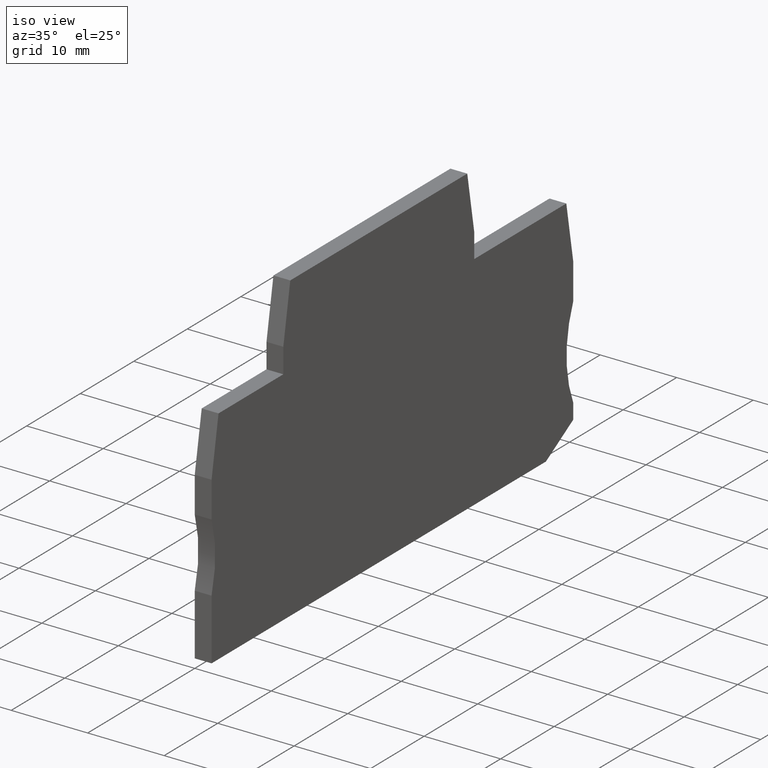
[diagram: clean part render]
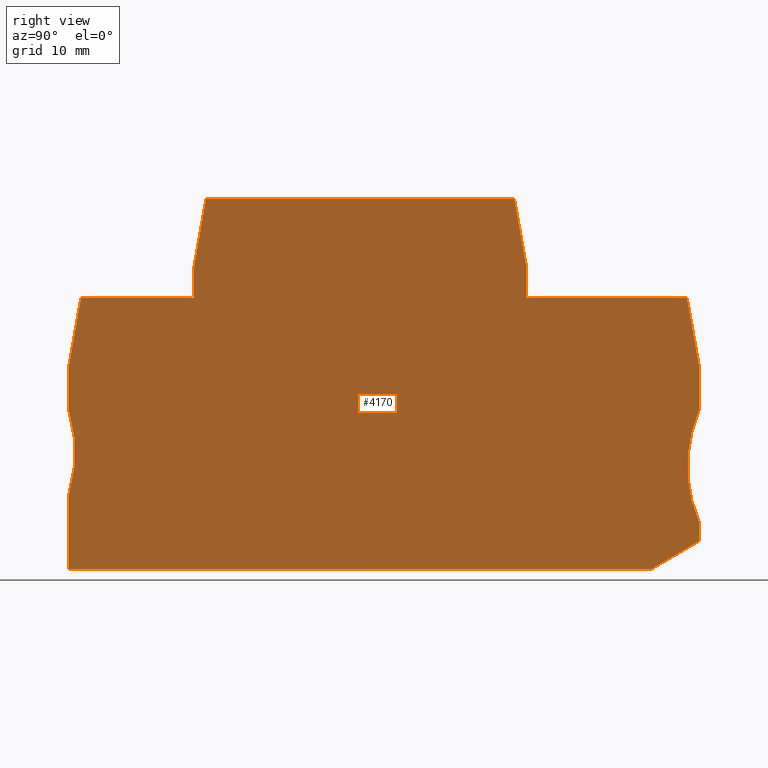
[diagram: tour spotlight — one face highlighted and labeled with its STEP entity id]
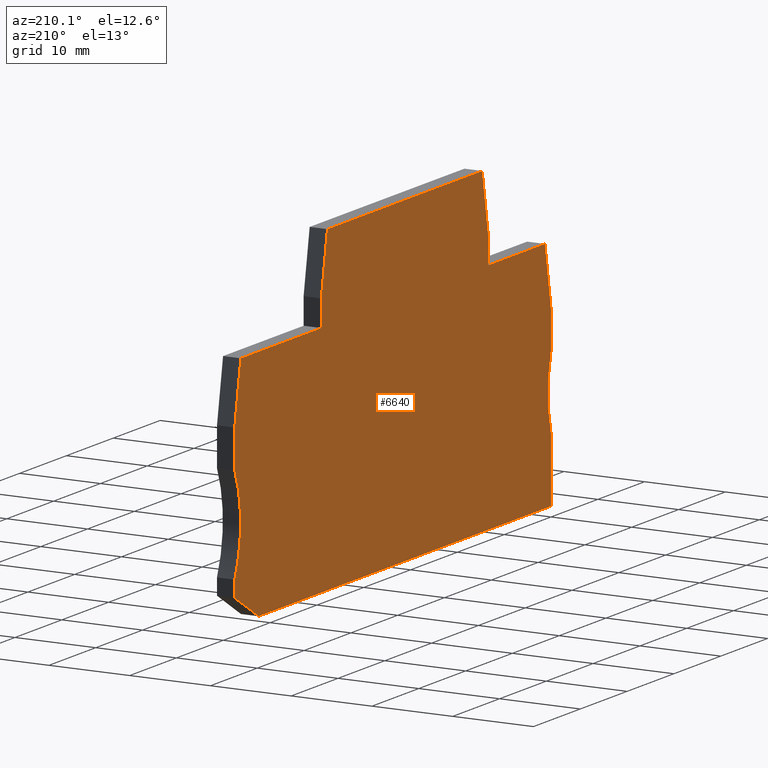
[diagram: tour spotlight — one face highlighted and labeled with its STEP entity id]
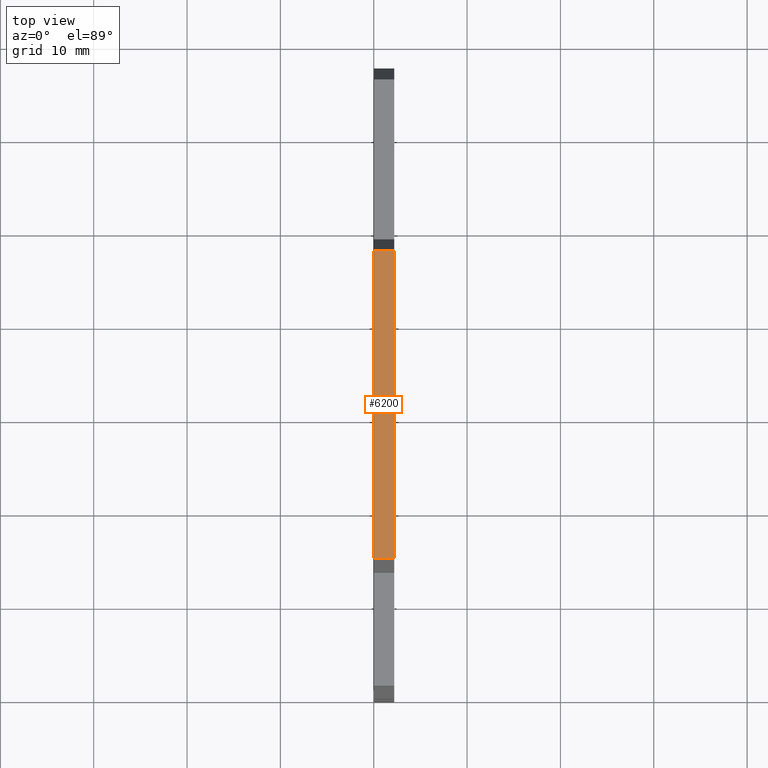
[diagram: tour spotlight — one face highlighted and labeled with its STEP entity id]
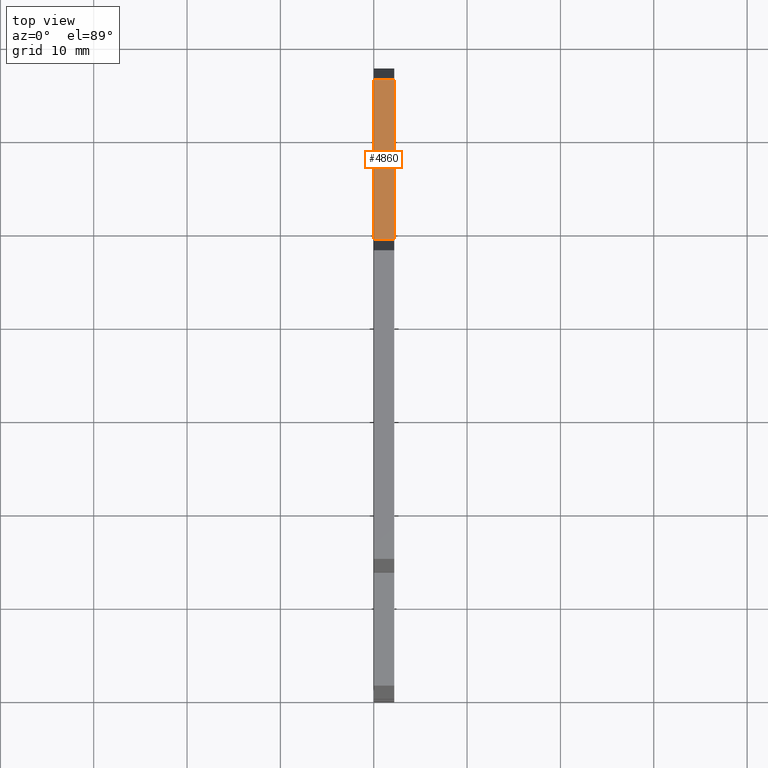
[diagram: tour spotlight — one face highlighted and labeled with its STEP entity id]
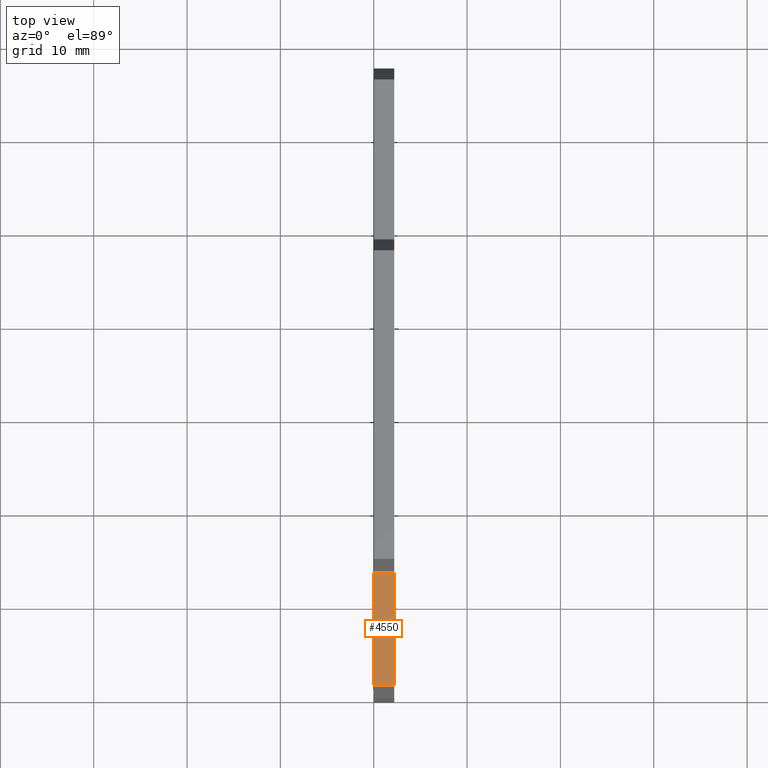
[diagram: tour spotlight — one face highlighted and labeled with its STEP entity id]
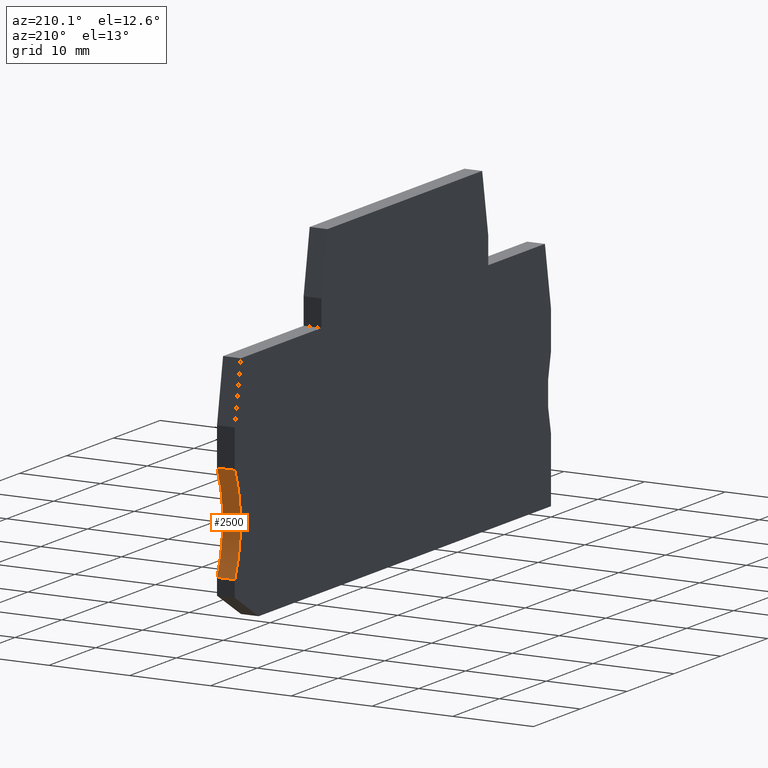
[diagram: tour spotlight — one face highlighted and labeled with its STEP entity id]
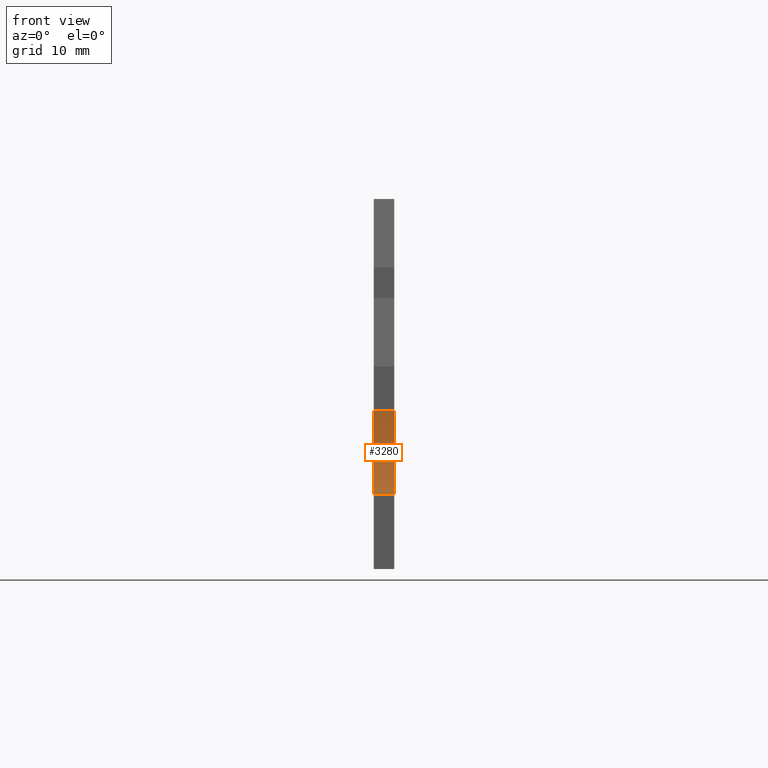
[diagram: tour spotlight — one face highlighted and labeled with its STEP entity id]
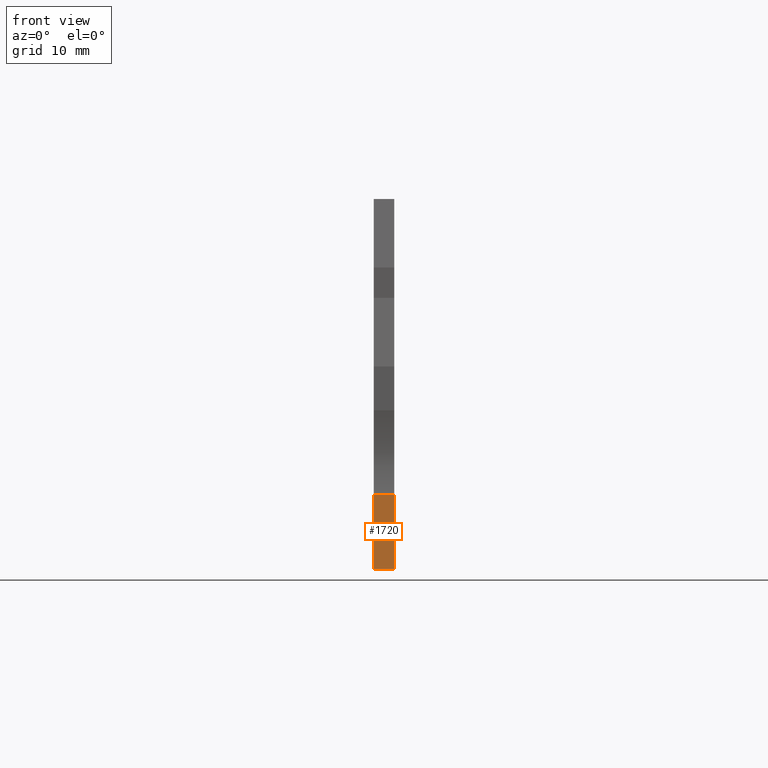
[diagram: tour spotlight — one face highlighted and labeled with its STEP entity id]
A machine part: a face-by-face anatomy tour. The part has 19 B-rep faces; the first image is the clean iso view, then the 8 largest visible faces are spotlighted one at a time (largest first), each with its STEP entity span.

Face 1 — right view, entity #4170. In plain terms, the highlighted planar face has unit normal (-1, -0, 0).
Definition (entity closure, byte-faithful):
#200=CARTESIAN_POINT('',(96.9073958539173,-9.15000000000308,55.87));
#210=VERTEX_POINT('',#200);
#240=CARTESIAN_POINT('',(96.9073958539173,-11.94298,55.87));
#250=DIRECTION('',(-8.74514136349906E-15,1.,0.));
#260=VECTOR('',#250,1.);
#270=LINE('',#240,#260);
#280=CARTESIAN_POINT('',(96.9073958539173,-5.90000000010878,55.87));
#290=VERTEX_POINT('',#280);
#300=EDGE_CURVE('',#210,#290,#270,.T.);
#590=CARTESIAN_POINT('',(47.8573958538972,-38.2000000000016,55.87));
#600=VERTEX_POINT('',#590);
#630=CARTESIAN_POINT('',(104.930098,-38.2000000000016,55.87));
#640=DIRECTION('',(1.,0.,0.));
#650=VECTOR('',#640,1.);
#660=LINE('',#630,#650);
#670=CARTESIAN_POINT('',(110.302453373372,-38.2000000000016,55.87));
#680=VERTEX_POINT('',#670);
#690=EDGE_CURVE('',#600,#680,#660,.T.);
#1140=CARTESIAN_POINT('',(115.407395853897,-21.2000000000027,55.87));
#1150=VERTEX_POINT('',#1140);
#1180=CARTESIAN_POINT('',(115.407395853897,-11.94298,55.87));
#1190=DIRECTION('',(0.,1.,0.));
#1200=VECTOR('',#1190,1.);
#1210=LINE('',#1180,#1200);
#1220=CARTESIAN_POINT('',(115.407395853897,-16.5000017509225,55.87));
#1230=VERTEX_POINT('',#1220);
#1240=EDGE_CURVE('',#1150,#1230,#1210,.T.);
#1590=CARTESIAN_POINT('',(47.8573958538972,-30.2000000000048,55.87));
#1600=VERTEX_POINT('',#1590);
#1630=CARTESIAN_POINT('',(47.8573958538972,-11.94298,55.87));
#1640=DIRECTION('',(-4.65275954243089E-17,-1.,0.));
#1650=VECTOR('',#1640,1.);
#1660=LINE('',#1630,#1650);
#1670=EDGE_CURVE('',#1600,#600,#1660,.T.);
#1990=CARTESIAN_POINT('',(115.407395853897,-35.2001345347364,55.87));
#2000=VERTEX_POINT('',#1990);
#2030=CARTESIAN_POINT('',(115.407395853897,-11.94298,55.87));
#2040=DIRECTION('',(0.,1.,0.));
#2050=VECTOR('',#2040,1.);
#2060=LINE('',#2030,#2050);
#2070=CARTESIAN_POINT('',(115.407395853897,-33.2000000000028,55.87));
#2080=VERTEX_POINT('',#2070);
#2090=EDGE_CURVE('',#2000,#2080,#2060,.T.);
#2400=CARTESIAN_POINT('',(129.155122938765,-27.2000000000027,55.87));
#2410=DIRECTION('',(0.,0.,1.));
#2420=DIRECTION('',(1.,0.,0.));
#2430=AXIS2_PLACEMENT_3D('',#2400,#2410,#2420);
#2440=CIRCLE('',#2430,15.);
#2450=EDGE_CURVE('',#1150,#2080,#2440,.T.);
#2690=CARTESIAN_POINT('',(47.8573958538972,-16.4999982489833,55.87));
#2700=VERTEX_POINT('',#2690);
#2730=CARTESIAN_POINT('',(47.8573958538972,-11.94298,55.87));
#2740=DIRECTION('',(0.,-1.,0.));
#2750=VECTOR('',#2740,1.);
#2760=LINE('',#2730,#2750);
#2770=CARTESIAN_POINT('',(47.8573958538972,-21.2000000000006,55.87));
#2780=VERTEX_POINT('',#2770);
#2790=EDGE_CURVE('',#2700,#2780,#2760,.T.);
#3180=CARTESIAN_POINT('',(33.5483078326437,-25.7000000000027,55.87));
#3190=DIRECTION('',(0.,0.,-1.));
#3200=DIRECTION('',(-1.,0.,0.));
#3210=AXIS2_PLACEMENT_3D('',#3180,#3190,#3200);
#3220=CIRCLE('',#3210,15.);
#3230=EDGE_CURVE('',#2780,#1600,#3220,.T.);
#3360=CARTESIAN_POINT('',(50.6620291852084,-9.97054786192231,55.87));
#3370=DIRECTION('',(0.,0.,-1.));
#3380=DIRECTION('',(-1.,0.,0.));
#3390=AXIS2_PLACEMENT_3D('',#3360,#3370,#3380);
#3400=PLANE('',#3390);
#3410=CARTESIAN_POINT('',(48.6609211227738,-11.94298,55.87));
#3420=DIRECTION('',(0.173648177666926,0.984807753012209,0.));
#3430=VECTOR('',#3420,1.);
#3440=LINE('',#3410,#3430);
#3450=CARTESIAN_POINT('',(49.1533988533523,-9.15000000000308,55.87));
#3460=VERTEX_POINT('',#3450);
#3470=EDGE_CURVE('',#2700,#3460,#3440,.T.);
#3480=ORIENTED_EDGE('',*,*,#3470,.F.);
#3490=CARTESIAN_POINT('',(104.930098,-9.15000000003588,55.87));
#3500=DIRECTION('',(1.,-5.88205564955502E-13,0.));
#3510=VECTOR('',#3500,1.);
#3520=LINE('',#3490,#3510);
#3530=CARTESIAN_POINT('',(61.2573958538972,-9.15000000001019,55.87));
#3540=VERTEX_POINT('',#3530);
#3550=EDGE_CURVE('',#3460,#3540,#3520,.T.);
#3560=ORIENTED_EDGE('',*,*,#3550,.F.);
#3570=CARTESIAN_POINT('',(61.2573958538972,-11.94298,55.87));
#3580=DIRECTION('',(0.,-1.,0.));
#3590=VECTOR('',#3580,1.);
#3600=LINE('',#3570,#3590);
#3610=CARTESIAN_POINT('',(61.2573958538972,-5.8999999999975,55.87));
#3620=VERTEX_POINT('',#3610);
#3630=EDGE_CURVE('',#3620,#3540,#3600,.T.);
#3640=ORIENTED_EDGE('',*,*,#3630,.T.);
#3650=CARTESIAN_POINT('',(60.1918554360151,-11.94298,55.87));
#3660=DIRECTION('',(-0.17364817766693,-0.984807753012208,0.));
#3670=VECTOR('',#3660,1.);
#3680=LINE('',#3650,#3670);
#3690=CARTESIAN_POINT('',(62.5533991621023,1.44999999999058,55.87));
#3700=VERTEX_POINT('',#3690);
#3710=EDGE_CURVE('',#3700,#3620,#3680,.T.);
#3720=ORIENTED_EDGE('',*,*,#3710,.T.);
#3730=CARTESIAN_POINT('',(104.930098,1.44999999999058,55.87));
#3740=DIRECTION('',(-1.,0.,0.));
#3750=VECTOR('',#3740,1.);
#3760=LINE('',#3730,#3750);
#3770=CARTESIAN_POINT('',(95.6113925456925,1.44999999999058,55.87));
#3780=VERTEX_POINT('',#3770);
#3790=EDGE_CURVE('',#3780,#3700,#3760,.T.);
#3800=ORIENTED_EDGE('',*,*,#3790,.T.);
#3810=CARTESIAN_POINT('',(97.9729362717797,-11.94298,55.87));
#3820=DIRECTION('',(-0.173648177666931,0.984807753012208,0.));
#3830=VECTOR('',#3820,1.);
#3840=LINE('',#3810,#3830);
#3850=EDGE_CURVE('',#290,#3780,#3840,.T.);
#3860=ORIENTED_EDGE('',*,*,#3850,.T.);
#3870=ORIENTED_EDGE('',*,*,#300,.T.);
#3880=CARTESIAN_POINT('',(104.930098,-9.15000000000308,55.87));
#3890=DIRECTION('',(-1.,0.,0.));
#3900=VECTOR('',#3890,1.);
#3910=LINE('',#3880,#3900);
#3920=CARTESIAN_POINT('',(114.111392236956,-9.15000000000308,55.87));
#3930=VERTEX_POINT('',#3920);
#3940=EDGE_CURVE('',#3930,#210,#3910,.T.);
#3950=ORIENTED_EDGE('',*,*,#3940,.T.);
#3960=CARTESIAN_POINT('',(114.603869967534,-11.94298,55.87));
#3970=DIRECTION('',(-0.17364817766693,0.984807753012208,0.));
#3980=VECTOR('',#3970,1.);
#3990=LINE('',#3960,#3980);
#4000=EDGE_CURVE('',#1230,#3930,#3990,.T.);
#4010=ORIENTED_EDGE('',*,*,#4000,.T.);
#4020=ORIENTED_EDGE('',*,*,#1240,.T.);
#4030=ORIENTED_EDGE('',*,*,#2450,.F.);
#4040=ORIENTED_EDGE('',*,*,#2090,.T.);
#4050=CARTESIAN_POINT('',(104.930098,-41.3570078239273,55.87));
#4060=DIRECTION('',(0.862158641431198,0.506638408537598,0.));
#4070=VECTOR('',#4060,1.);
#4080=LINE('',#4050,#4070);
#4090=EDGE_CURVE('',#680,#2000,#4080,.T.);
#4100=ORIENTED_EDGE('',*,*,#4090,.T.);
#4110=ORIENTED_EDGE('',*,*,#690,.T.);
#4120=ORIENTED_EDGE('',*,*,#1670,.T.);
#4130=ORIENTED_EDGE('',*,*,#3230,.T.);
#4140=ORIENTED_EDGE('',*,*,#2790,.T.);
#4150=EDGE_LOOP('',(#4140,#4130,#4120,#4110,#4100,#4040,#4030,#4020,
#4010,#3950,#3870,#3860,#3800,#3720,#3640,#3560,#3480));
#4160=FACE_OUTER_BOUND('',#4150,.T.);
#4170=ADVANCED_FACE('',(#4160),#3400,.F.);

Face 2 — auxiliary view, entity #6640. In plain terms, the highlighted planar face has unit normal (-1, -0, 0).
Definition (entity closure, byte-faithful):
#60=CARTESIAN_POINT('',(96.9073958539173,-11.94298,53.67));
#70=DIRECTION('',(8.74514136349906E-15,-1.,0.));
#80=VECTOR('',#70,1.);
#90=LINE('',#60,#80);
#100=CARTESIAN_POINT('',(96.9073958539173,-5.90000000010878,53.67));
#110=VERTEX_POINT('',#100);
#120=CARTESIAN_POINT('',(96.9073958539173,-9.15000000000308,53.67));
#130=VERTEX_POINT('',#120);
#140=EDGE_CURVE('',#110,#130,#90,.T.);
#570=CARTESIAN_POINT('',(47.8573958538972,-38.2000000000016,53.67));
#580=VERTEX_POINT('',#570);
#750=CARTESIAN_POINT('',(110.302453373372,-38.2000000000016,53.67));
#760=VERTEX_POINT('',#750);
#790=CARTESIAN_POINT('',(104.930098,-38.2000000000016,53.67));
#800=DIRECTION('',(-1.,0.,0.));
#810=VECTOR('',#800,1.);
#820=LINE('',#790,#810);
#830=EDGE_CURVE('',#760,#580,#820,.T.);
#1000=CARTESIAN_POINT('',(115.407395853897,-11.94298,53.67));
#1010=DIRECTION('',(0.,-1.,0.));
#1020=VECTOR('',#1010,1.);
#1030=LINE('',#1000,#1020);
#1040=CARTESIAN_POINT('',(115.407395853897,-16.5000017509225,53.67));
#1050=VERTEX_POINT('',#1040);
#1060=CARTESIAN_POINT('',(115.407395853897,-21.2000000000027,53.67));
#1070=VERTEX_POINT('',#1060);
#1080=EDGE_CURVE('',#1050,#1070,#1030,.T.);
#1470=CARTESIAN_POINT('',(47.8573958538972,-11.94298,53.67));
#1480=DIRECTION('',(4.65275954243089E-17,1.,0.));
#1490=VECTOR('',#1480,1.);
#1500=LINE('',#1470,#1490);
#1510=CARTESIAN_POINT('',(47.8573958538972,-30.2000000000048,53.67));
#1520=VERTEX_POINT('',#1510);
#1530=EDGE_CURVE('',#580,#1520,#1500,.T.);
#1850=CARTESIAN_POINT('',(115.407395853897,-11.94298,53.67));
#1860=DIRECTION('',(0.,-1.,0.));
#1870=VECTOR('',#1860,1.);
#1880=LINE('',#1850,#1870);
#1890=CARTESIAN_POINT('',(115.407395853897,-33.2000000000028,53.67));
#1900=VERTEX_POINT('',#1890);
#1910=CARTESIAN_POINT('',(115.407395853897,-35.2001345347364,53.67));
#1920=VERTEX_POINT('',#1910);
#1930=EDGE_CURVE('',#1900,#1920,#1880,.T.);
#2320=CARTESIAN_POINT('',(129.155122938765,-27.2000000000027,53.67));
#2330=DIRECTION('',(0.,0.,1.));
#2340=DIRECTION('',(1.,0.,0.));
#2350=AXIS2_PLACEMENT_3D('',#2320,#2330,#2340);
#2360=CIRCLE('',#2350,15.);
#2370=EDGE_CURVE('',#1070,#1900,#2360,.T.);
#2670=CARTESIAN_POINT('',(47.8573958538972,-16.4999982489833,53.67));
#2680=VERTEX_POINT('',#2670);
#2850=CARTESIAN_POINT('',(47.8573958538972,-21.2000000000006,53.67));
#2860=VERTEX_POINT('',#2850);
#2890=CARTESIAN_POINT('',(47.8573958538972,-11.94298,53.67));
#2900=DIRECTION('',(0.,1.,0.));
#2910=VECTOR('',#2900,1.);
#2920=LINE('',#2890,#2910);
#2930=EDGE_CURVE('',#2860,#2680,#2920,.T.);
#3100=CARTESIAN_POINT('',(33.5483078326437,-25.7000000000027,53.67));
#3110=DIRECTION('',(0.,0.,-1.));
#3120=DIRECTION('',(-1.,0.,0.));
#3130=AXIS2_PLACEMENT_3D('',#3100,#3110,#3120);
#3140=CIRCLE('',#3130,15.);
#3150=EDGE_CURVE('',#2860,#1520,#3140,.T.);
#4300=CARTESIAN_POINT('',(104.930098,-9.15000000003588,53.67));
#4310=DIRECTION('',(1.,-5.88205564955502E-13,0.));
#4320=VECTOR('',#4310,1.);
#4330=LINE('',#4300,#4320);
#4340=CARTESIAN_POINT('',(49.1533988533523,-9.15000000000308,53.67));
#4350=VERTEX_POINT('',#4340);
#4360=CARTESIAN_POINT('',(61.2573958538972,-9.15000000001019,53.67));
#4370=VERTEX_POINT('',#4360);
#4380=EDGE_CURVE('',#4350,#4370,#4330,.T.);
#4690=CARTESIAN_POINT('',(104.930098,-9.15000000000308,53.67));
#4700=DIRECTION('',(1.,0.,0.));
#4710=VECTOR('',#4700,1.);
#4720=LINE('',#4690,#4710);
#4730=CARTESIAN_POINT('',(114.111392236956,-9.15000000000308,53.67));
#4740=VERTEX_POINT('',#4730);
#4750=EDGE_CURVE('',#130,#4740,#4720,.T.);
#4990=CARTESIAN_POINT('',(97.9729362717797,-11.94298,53.67));
#5000=DIRECTION('',(0.173648177666931,-0.984807753012208,0.));
#5010=VECTOR('',#5000,1.);
#5020=LINE('',#4990,#5010);
#5030=CARTESIAN_POINT('',(95.6113925456925,1.44999999999058,53.67));
#5040=VERTEX_POINT('',#5030);
#5050=EDGE_CURVE('',#5040,#110,#5020,.T.);
#5300=CARTESIAN_POINT('',(48.6609211227738,-11.94298,53.67));
#5310=DIRECTION('',(0.173648177666926,0.984807753012209,0.));
#5320=VECTOR('',#5310,1.);
#5330=LINE('',#5300,#5320);
#5340=EDGE_CURVE('',#2680,#4350,#5330,.T.);
#5540=CARTESIAN_POINT('',(114.603869967534,-11.94298,53.67));
#5550=DIRECTION('',(0.17364817766693,-0.984807753012208,0.));
#5560=VECTOR('',#5550,1.);
#5570=LINE('',#5540,#5560);
#5580=EDGE_CURVE('',#4740,#1050,#5570,.T.);
#5800=CARTESIAN_POINT('',(104.930098,-41.3570078239273,53.67));
#5810=DIRECTION('',(-0.862158641431198,-0.506638408537598,0.));
#5820=VECTOR('',#5810,1.);
#5830=LINE('',#5800,#5820);
#5840=EDGE_CURVE('',#1920,#760,#5830,.T.);
#6060=CARTESIAN_POINT('',(62.5533991621023,1.44999999999059,53.67));
#6070=VERTEX_POINT('',#6060);
#6100=CARTESIAN_POINT('',(104.930098,1.44999999999058,53.67));
#6110=DIRECTION('',(1.,0.,0.));
#6120=VECTOR('',#6110,1.);
#6130=LINE('',#6100,#6120);
#6140=EDGE_CURVE('',#6070,#5040,#6130,.T.);
#6280=CARTESIAN_POINT('',(56.1471459409733,-20.796013,53.67));
#6290=DIRECTION('',(0.,0.,-1.));
#6300=DIRECTION('',(-1.,0.,0.));
#6310=AXIS2_PLACEMENT_3D('',#6280,#6290,#6300);
#6320=PLANE('',#6310);
#6330=ORIENTED_EDGE('',*,*,#5840,.T.);
#6340=ORIENTED_EDGE('',*,*,#1930,.T.);
#6350=ORIENTED_EDGE('',*,*,#2370,.T.);
#6360=ORIENTED_EDGE('',*,*,#1080,.T.);
#6370=ORIENTED_EDGE('',*,*,#5580,.T.);
#6380=ORIENTED_EDGE('',*,*,#4750,.T.);
#6390=ORIENTED_EDGE('',*,*,#140,.T.);
#6400=ORIENTED_EDGE('',*,*,#5050,.T.);
#6410=ORIENTED_EDGE('',*,*,#6140,.T.);
#6420=CARTESIAN_POINT('',(60.1918554360151,-11.94298,53.67));
#6430=DIRECTION('',(0.17364817766693,0.984807753012208,0.));
#6440=VECTOR('',#6430,1.);
#6450=LINE('',#6420,#6440);
#6460=CARTESIAN_POINT('',(61.2573958538972,-5.8999999999975,53.67));
#6470=VERTEX_POINT('',#6460);
#6480=EDGE_CURVE('',#6470,#6070,#6450,.T.);
#6490=ORIENTED_EDGE('',*,*,#6480,.T.);
#6500=CARTESIAN_POINT('',(61.2573958538972,-11.94298,53.67));
#6510=DIRECTION('',(0.,1.,0.));
#6520=VECTOR('',#6510,1.);
#6530=LINE('',#6500,#6520);
#6540=EDGE_CURVE('',#4370,#6470,#6530,.T.);
#6550=ORIENTED_EDGE('',*,*,#6540,.T.);
#6560=ORIENTED_EDGE('',*,*,#4380,.T.);
#6570=ORIENTED_EDGE('',*,*,#5340,.T.);
#6580=ORIENTED_EDGE('',*,*,#2930,.T.);
#6590=ORIENTED_EDGE('',*,*,#3150,.F.);
#6600=ORIENTED_EDGE('',*,*,#1530,.T.);
#6610=ORIENTED_EDGE('',*,*,#830,.T.);
#6620=EDGE_LOOP('',(#6610,#6600,#6590,#6580,#6570,#6560,#6550,#6490,
#6410,#6400,#6390,#6380,#6370,#6360,#6350,#6340,#6330));
#6630=FACE_OUTER_BOUND('',#6620,.T.);
#6640=ADVANCED_FACE('',(#6630),#6320,.T.);

Face 3 — top view, entity #6200. In plain terms, the highlighted planar face has unit normal (0, 0, 1).
Definition (entity closure, byte-faithful):
#3690=CARTESIAN_POINT('',(62.5533991621023,1.44999999999058,55.87));
#3700=VERTEX_POINT('',#3690);
#3730=CARTESIAN_POINT('',(104.930098,1.44999999999058,55.87));
#3740=DIRECTION('',(-1.,0.,0.));
#3750=VECTOR('',#3740,1.);
#3760=LINE('',#3730,#3750);
#3770=CARTESIAN_POINT('',(95.6113925456925,1.44999999999058,55.87));
#3780=VERTEX_POINT('',#3770);
#3790=EDGE_CURVE('',#3780,#3700,#3760,.T.);
#5030=CARTESIAN_POINT('',(95.6113925456925,1.44999999999058,53.67));
#5040=VERTEX_POINT('',#5030);
#5090=CARTESIAN_POINT('',(95.6113925456925,1.44999999999058,53.67));
#5100=DIRECTION('',(0.,0.,1.));
#5110=VECTOR('',#5100,1.);
#5120=LINE('',#5090,#5110);
#5130=EDGE_CURVE('',#5040,#3780,#5120,.T.);
#5970=CARTESIAN_POINT('',(79.2073958539156,1.44999999999058,53.67));
#5980=DIRECTION('',(-0.,1.,0.));
#5990=DIRECTION('',(1.,0.,0.));
#6000=AXIS2_PLACEMENT_3D('',#5970,#5980,#5990);
#6010=PLANE('',#6000);
#6020=CARTESIAN_POINT('',(62.5533991621023,1.44999999999058,53.67));
#6030=DIRECTION('',(0.,0.,1.));
#6040=VECTOR('',#6030,1.);
#6050=LINE('',#6020,#6040);
#6060=CARTESIAN_POINT('',(62.5533991621023,1.44999999999059,53.67));
#6070=VERTEX_POINT('',#6060);
#6080=EDGE_CURVE('',#6070,#3700,#6050,.T.);
#6090=ORIENTED_EDGE('',*,*,#6080,.T.);
#6100=CARTESIAN_POINT('',(104.930098,1.44999999999058,53.67));
#6110=DIRECTION('',(1.,0.,0.));
#6120=VECTOR('',#6110,1.);
#6130=LINE('',#6100,#6120);
#6140=EDGE_CURVE('',#6070,#5040,#6130,.T.);
#6150=ORIENTED_EDGE('',*,*,#6140,.F.);
#6160=ORIENTED_EDGE('',*,*,#5130,.F.);
#6170=ORIENTED_EDGE('',*,*,#3790,.F.);
#6180=EDGE_LOOP('',(#6170,#6160,#6150,#6090));
#6190=FACE_OUTER_BOUND('',#6180,.T.);
#6200=ADVANCED_FACE('',(#6190),#6010,.T.);

Face 4 — top view, entity #4860. In plain terms, the highlighted planar face has unit normal (0, 0, 1).
Definition (entity closure, byte-faithful):
#120=CARTESIAN_POINT('',(96.9073958539173,-9.15000000000308,53.67));
#130=VERTEX_POINT('',#120);
#160=CARTESIAN_POINT('',(96.9073958539173,-9.15000000000308,53.67));
#170=DIRECTION('',(0.,0.,-1.));
#180=VECTOR('',#170,1.);
#190=LINE('',#160,#180);
#200=CARTESIAN_POINT('',(96.9073958539173,-9.15000000000308,55.87));
#210=VERTEX_POINT('',#200);
#220=EDGE_CURVE('',#210,#130,#190,.T.);
#3880=CARTESIAN_POINT('',(104.930098,-9.15000000000308,55.87));
#3890=DIRECTION('',(-1.,0.,0.));
#3900=VECTOR('',#3890,1.);
#3910=LINE('',#3880,#3900);
#3920=CARTESIAN_POINT('',(114.111392236956,-9.15000000000308,55.87));
#3930=VERTEX_POINT('',#3920);
#3940=EDGE_CURVE('',#3930,#210,#3910,.T.);
#4630=CARTESIAN_POINT('',(100.607395853917,-9.15000000000308,53.67));
#4640=DIRECTION('',(-0.,1.,0.));
#4650=DIRECTION('',(1.,0.,0.));
#4660=AXIS2_PLACEMENT_3D('',#4630,#4640,#4650);
#4670=PLANE('',#4660);
#4680=ORIENTED_EDGE('',*,*,#220,.F.);
#4690=CARTESIAN_POINT('',(104.930098,-9.15000000000308,53.67));
#4700=DIRECTION('',(1.,0.,0.));
#4710=VECTOR('',#4700,1.);
#4720=LINE('',#4690,#4710);
#4730=CARTESIAN_POINT('',(114.111392236956,-9.15000000000308,53.67));
#4740=VERTEX_POINT('',#4730);
#4750=EDGE_CURVE('',#130,#4740,#4720,.T.);
#4760=ORIENTED_EDGE('',*,*,#4750,.F.);
#4770=CARTESIAN_POINT('',(114.111392236956,-9.15000000000308,53.67));
#4780=DIRECTION('',(0.,0.,1.));
#4790=VECTOR('',#4780,1.);
#4800=LINE('',#4770,#4790);
#4810=EDGE_CURVE('',#4740,#3930,#4800,.T.);
#4820=ORIENTED_EDGE('',*,*,#4810,.F.);
#4830=ORIENTED_EDGE('',*,*,#3940,.F.);
#4840=EDGE_LOOP('',(#4830,#4820,#4760,#4680));
#4850=FACE_OUTER_BOUND('',#4840,.T.);
#4860=ADVANCED_FACE('',(#4850),#4670,.T.);

Face 5 — top view, entity #4550. In plain terms, the highlighted planar face has unit normal (0, 0, 1).
Definition (entity closure, byte-faithful):
#3450=CARTESIAN_POINT('',(49.1533988533523,-9.15000000000308,55.87));
#3460=VERTEX_POINT('',#3450);
#3490=CARTESIAN_POINT('',(104.930098,-9.15000000003588,55.87));
#3500=DIRECTION('',(1.,-5.88205564955502E-13,0.));
#3510=VECTOR('',#3500,1.);
#3520=LINE('',#3490,#3510);
#3530=CARTESIAN_POINT('',(61.2573958538972,-9.15000000001019,55.87));
#3540=VERTEX_POINT('',#3530);
#3550=EDGE_CURVE('',#3460,#3540,#3520,.T.);
#4250=CARTESIAN_POINT('',(49.1533985851014,-9.15000000000308,53.67));
#4260=DIRECTION('',(5.88205564955502E-13,1.,0.));
#4270=DIRECTION('',(1.,-5.88205564955502E-13,0.));
#4280=AXIS2_PLACEMENT_3D('',#4250,#4260,#4270);
#4290=PLANE('',#4280);
#4300=CARTESIAN_POINT('',(104.930098,-9.15000000003588,53.67));
#4310=DIRECTION('',(1.,-5.88205564955502E-13,0.));
#4320=VECTOR('',#4310,1.);
#4330=LINE('',#4300,#4320);
#4340=CARTESIAN_POINT('',(49.1533988533523,-9.15000000000308,53.67));
#4350=VERTEX_POINT('',#4340);
#4360=CARTESIAN_POINT('',(61.2573958538972,-9.15000000001019,53.67));
#4370=VERTEX_POINT('',#4360);
#4380=EDGE_CURVE('',#4350,#4370,#4330,.T.);
#4390=ORIENTED_EDGE('',*,*,#4380,.F.);
#4400=CARTESIAN_POINT('',(61.2573958538972,-9.15000000001019,53.67));
#4410=DIRECTION('',(0.,0.,-1.));
#4420=VECTOR('',#4410,1.);
#4430=LINE('',#4400,#4420);
#4440=EDGE_CURVE('',#3540,#4370,#4430,.T.);
#4450=ORIENTED_EDGE('',*,*,#4440,.T.);
#4460=ORIENTED_EDGE('',*,*,#3550,.T.);
#4470=CARTESIAN_POINT('',(49.1533988533523,-9.15000000000308,53.67));
#4480=DIRECTION('',(0.,0.,1.));
#4490=VECTOR('',#4480,1.);
#4500=LINE('',#4470,#4490);
#4510=EDGE_CURVE('',#4350,#3460,#4500,.T.);
#4520=ORIENTED_EDGE('',*,*,#4510,.T.);
#4530=EDGE_LOOP('',(#4520,#4460,#4450,#4390));
#4540=FACE_OUTER_BOUND('',#4530,.T.);
#4550=ADVANCED_FACE('',(#4540),#4290,.T.);

Face 6 — auxiliary view, entity #2500. In plain terms, the highlighted cylindrical surface (partial cylindrical patch) has radius 15 mm, axis along (1, 0, -0).
Definition (entity closure, byte-faithful):
#1060=CARTESIAN_POINT('',(115.407395853897,-21.2000000000027,53.67));
#1070=VERTEX_POINT('',#1060);
#1100=CARTESIAN_POINT('',(115.407395853897,-21.2000000000027,53.67));
#1110=DIRECTION('',(0.,0.,1.));
#1120=VECTOR('',#1110,1.);
#1130=LINE('',#1100,#1120);
#1140=CARTESIAN_POINT('',(115.407395853897,-21.2000000000027,55.87));
#1150=VERTEX_POINT('',#1140);
#1160=EDGE_CURVE('',#1070,#1150,#1130,.T.);
#1890=CARTESIAN_POINT('',(115.407395853897,-33.2000000000028,53.67));
#1900=VERTEX_POINT('',#1890);
#2070=CARTESIAN_POINT('',(115.407395853897,-33.2000000000028,55.87));
#2080=VERTEX_POINT('',#2070);
#2110=CARTESIAN_POINT('',(115.407395853897,-33.2000000000028,53.67));
#2120=DIRECTION('',(0.,0.,1.));
#2130=VECTOR('',#2120,1.);
#2140=LINE('',#2110,#2130);
#2150=EDGE_CURVE('',#1900,#2080,#2140,.T.);
#2270=CARTESIAN_POINT('',(129.155122938765,-27.2000000000027,53.67));
#2280=DIRECTION('',(0.,0.,1.));
#2290=DIRECTION('',(1.,0.,0.));
#2300=AXIS2_PLACEMENT_3D('',#2270,#2280,#2290);
#2310=CYLINDRICAL_SURFACE('',#2300,15.);
#2320=CARTESIAN_POINT('',(129.155122938765,-27.2000000000027,53.67));
#2330=DIRECTION('',(0.,0.,1.));
#2340=DIRECTION('',(1.,0.,0.));
#2350=AXIS2_PLACEMENT_3D('',#2320,#2330,#2340);
#2360=CIRCLE('',#2350,15.);
#2370=EDGE_CURVE('',#1070,#1900,#2360,.T.);
#2380=ORIENTED_EDGE('',*,*,#2370,.F.);
#2390=ORIENTED_EDGE('',*,*,#2150,.F.);
#2400=CARTESIAN_POINT('',(129.155122938765,-27.2000000000027,55.87));
#2410=DIRECTION('',(0.,0.,1.));
#2420=DIRECTION('',(1.,0.,0.));
#2430=AXIS2_PLACEMENT_3D('',#2400,#2410,#2420);
#2440=CIRCLE('',#2430,15.);
#2450=EDGE_CURVE('',#1150,#2080,#2440,.T.);
#2460=ORIENTED_EDGE('',*,*,#2450,.T.);
#2470=ORIENTED_EDGE('',*,*,#1160,.T.);
#2480=EDGE_LOOP('',(#2470,#2460,#2390,#2380));
#2490=FACE_OUTER_BOUND('',#2480,.T.);
#2500=ADVANCED_FACE('',(#2490),#2310,.F.);

Face 7 — front view, entity #3280. In plain terms, the highlighted cylindrical surface (partial cylindrical patch) has radius 15 mm, axis along (-1, -0, 0).
Definition (entity closure, byte-faithful):
#1510=CARTESIAN_POINT('',(47.8573958538972,-30.2000000000048,53.67));
#1520=VERTEX_POINT('',#1510);
#1550=CARTESIAN_POINT('',(47.8573958538972,-30.2000000000048,53.67));
#1560=DIRECTION('',(0.,0.,-1.));
#1570=VECTOR('',#1560,1.);
#1580=LINE('',#1550,#1570);
#1590=CARTESIAN_POINT('',(47.8573958538972,-30.2000000000048,55.87));
#1600=VERTEX_POINT('',#1590);
#1610=EDGE_CURVE('',#1600,#1520,#1580,.T.);
#2770=CARTESIAN_POINT('',(47.8573958538972,-21.2000000000006,55.87));
#2780=VERTEX_POINT('',#2770);
#2810=CARTESIAN_POINT('',(47.8573958538972,-21.2000000000006,53.67));
#2820=DIRECTION('',(0.,0.,-1.));
#2830=VECTOR('',#2820,1.);
#2840=LINE('',#2810,#2830);
#2850=CARTESIAN_POINT('',(47.8573958538972,-21.2000000000006,53.67));
#2860=VERTEX_POINT('',#2850);
#2870=EDGE_CURVE('',#2780,#2860,#2840,.T.);
#3050=CARTESIAN_POINT('',(33.5483078326437,-25.7000000000027,53.67));
#3060=DIRECTION('',(0.,0.,-1.));
#3070=DIRECTION('',(-1.,0.,0.));
#3080=AXIS2_PLACEMENT_3D('',#3050,#3060,#3070);
#3090=CYLINDRICAL_SURFACE('',#3080,15.);
#3100=CARTESIAN_POINT('',(33.5483078326437,-25.7000000000027,53.67));
#3110=DIRECTION('',(0.,0.,-1.));
#3120=DIRECTION('',(-1.,0.,0.));
#3130=AXIS2_PLACEMENT_3D('',#3100,#3110,#3120);
#3140=CIRCLE('',#3130,15.);
#3150=EDGE_CURVE('',#2860,#1520,#3140,.T.);
#3160=ORIENTED_EDGE('',*,*,#3150,.T.);
#3170=ORIENTED_EDGE('',*,*,#2870,.T.);
#3180=CARTESIAN_POINT('',(33.5483078326437,-25.7000000000027,55.87));
#3190=DIRECTION('',(0.,0.,-1.));
#3200=DIRECTION('',(-1.,0.,0.));
#3210=AXIS2_PLACEMENT_3D('',#3180,#3190,#3200);
#3220=CIRCLE('',#3210,15.);
#3230=EDGE_CURVE('',#2780,#1600,#3220,.T.);
#3240=ORIENTED_EDGE('',*,*,#3230,.F.);
#3250=ORIENTED_EDGE('',*,*,#1610,.F.);
#3260=EDGE_LOOP('',(#3250,#3240,#3170,#3160));
#3270=FACE_OUTER_BOUND('',#3260,.T.);
#3280=ADVANCED_FACE('',(#3270),#3090,.F.);

Face 8 — front view, entity #1720. In plain terms, the highlighted planar face has unit normal (0, -1, 0).
Definition (entity closure, byte-faithful):
#530=CARTESIAN_POINT('',(47.8573958538972,-38.2000000000016,53.67));
#540=DIRECTION('',(0.,0.,1.));
#550=VECTOR('',#540,1.);
#560=LINE('',#530,#550);
#570=CARTESIAN_POINT('',(47.8573958538972,-38.2000000000016,53.67));
#580=VERTEX_POINT('',#570);
#590=CARTESIAN_POINT('',(47.8573958538972,-38.2000000000016,55.87));
#600=VERTEX_POINT('',#590);
#610=EDGE_CURVE('',#580,#600,#560,.T.);
#1420=CARTESIAN_POINT('',(47.8573958538972,-49.2892826418515,53.67));
#1430=DIRECTION('',(-1.,4.65275954243089E-17,0.));
#1440=DIRECTION('',(-4.65275954243089E-17,-1.,0.));
#1450=AXIS2_PLACEMENT_3D('',#1420,#1430,#1440);
#1460=PLANE('',#1450);
#1470=CARTESIAN_POINT('',(47.8573958538972,-11.94298,53.67));
#1480=DIRECTION('',(4.65275954243089E-17,1.,0.));
#1490=VECTOR('',#1480,1.);
#1500=LINE('',#1470,#1490);
#1510=CARTESIAN_POINT('',(47.8573958538972,-30.2000000000048,53.67));
#1520=VERTEX_POINT('',#1510);
#1530=EDGE_CURVE('',#580,#1520,#1500,.T.);
#1540=ORIENTED_EDGE('',*,*,#1530,.F.);
#1550=CARTESIAN_POINT('',(47.8573958538972,-30.2000000000048,53.67));
#1560=DIRECTION('',(0.,0.,-1.));
#1570=VECTOR('',#1560,1.);
#1580=LINE('',#1550,#1570);
#1590=CARTESIAN_POINT('',(47.8573958538972,-30.2000000000048,55.87));
#1600=VERTEX_POINT('',#1590);
#1610=EDGE_CURVE('',#1600,#1520,#1580,.T.);
#1620=ORIENTED_EDGE('',*,*,#1610,.T.);
#1630=CARTESIAN_POINT('',(47.8573958538972,-11.94298,55.87));
#1640=DIRECTION('',(-4.65275954243089E-17,-1.,0.));
#1650=VECTOR('',#1640,1.);
#1660=LINE('',#1630,#1650);
#1670=EDGE_CURVE('',#1600,#600,#1660,.T.);
#1680=ORIENTED_EDGE('',*,*,#1670,.F.);
#1690=ORIENTED_EDGE('',*,*,#610,.T.);
#1700=EDGE_LOOP('',(#1690,#1680,#1620,#1540));
#1710=FACE_OUTER_BOUND('',#1700,.T.);
#1720=ADVANCED_FACE('',(#1710),#1460,.T.);